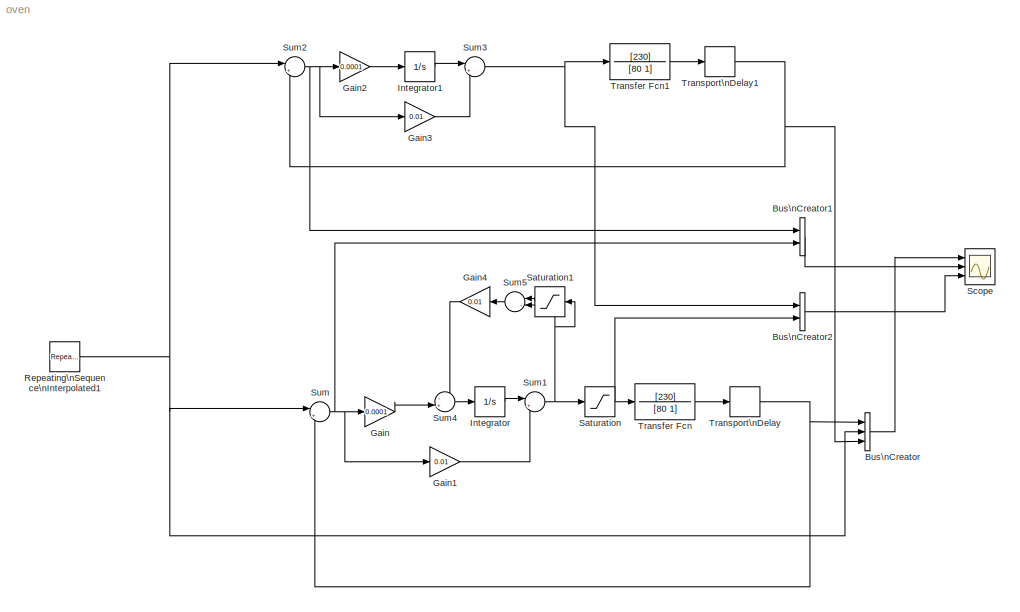
MODEL oven
KIND model
BLOCK [BusCreator] Bus\nCreator
  DisplayOption = bar
  Inputs = 3
  Ports = [3, 1]
  SID = 8
BLOCK [BusCreator] Bus\nCreator1
  DisplayOption = bar
  Inputs = 2
  Ports = [2, 1]
  SID = 40
BLOCK [BusCreator] Bus\nCreator2
  DisplayOption = bar
  Inputs = 2
  Ports = [2, 1]
  SID = 54
BLOCK [Gain] Gain
  Gain = 0.0001
  OutDataType = fixdt(1, 16)
  OutDataTypeMode = Inherit via internal rule
  OutDataTypeStr = Inherit: Inherit via internal rule
  OutScaling = 2^0
  ParamDataTypeStr = Inherit: Inherit via internal rule
  ParameterDataType = fixdt(1, 16)
  ParameterDataTypeMode = Inherit via internal rule
  ParameterScaling = 2^0
  SID = 36
  SaturateOnIntegerOverflow = off
BLOCK [Gain] Gain1
  Gain = 0.01
  OutDataType = fixdt(1, 16)
  OutDataTypeMode = Inherit via internal rule
  OutDataTypeStr = Inherit: Inherit via internal rule
  OutScaling = 2^0
  ParamDataTypeStr = Inherit: Inherit via internal rule
  ParameterDataType = fixdt(1, 16)
  ParameterDataTypeMode = Inherit via internal rule
  ParameterScaling = 2^0
  SID = 37
  SaturateOnIntegerOverflow = off
BLOCK [Gain] Gain2
  Gain = 0.0001
  OutDataType = fixdt(1, 16)
  OutDataTypeMode = Inherit via internal rule
  OutDataTypeStr = Inherit: Inherit via internal rule
  OutScaling = 2^0
  ParamDataTypeStr = Inherit: Inherit via internal rule
  ParameterDataType = fixdt(1, 16)
  ParameterDataTypeMode = Inherit via internal rule
  ParameterScaling = 2^0
  SID = 41
  SaturateOnIntegerOverflow = off
BLOCK [Gain] Gain3
  Gain = 0.01
  OutDataType = fixdt(1, 16)
  OutDataTypeMode = Inherit via internal rule
  OutDataTypeStr = Inherit: Inherit via internal rule
  OutScaling = 2^0
  ParamDataTypeStr = Inherit: Inherit via internal rule
  ParameterDataType = fixdt(1, 16)
  ParameterDataTypeMode = Inherit via internal rule
  ParameterScaling = 2^0
  SID = 42
  SaturateOnIntegerOverflow = off
BLOCK [Gain] Gain4
  Gain = 0.01
  OutDataType = fixdt(1, 16)
  OutDataTypeMode = Inherit via internal rule
  OutDataTypeStr = Inherit: Inherit via internal rule
  OutScaling = 2^0
  ParamDataTypeStr = Inherit: Inherit via internal rule
  ParameterDataType = fixdt(1, 16)
  ParameterDataTypeMode = Inherit via internal rule
  ParameterScaling = 2^0
  SID = 52
  SaturateOnIntegerOverflow = off
BLOCK [Integrator] Integrator
  Ports = [1, 1]
  SID = 35
BLOCK [Integrator] Integrator1
  Ports = [1, 1]
  SID = 43
BLOCK [Reference] Repeating\nSequence\nInterpolated1  REF=simulink/Sources/Repeating\nSequence\nInterpolated
  FunctionWithSeparateData = off
  LockScale = off
  LookUpMeth = Interpolation-Use End Values
  OutDataType = slDataTypeAndScale(('double'),('2^(-10)'))
  OutDataTypeStr = double
  OutMax = []
  OutMin = []
  OutScaling = []
  OutValues = [25 150 180 210 180 25 25].'
  OutputDataTypeScalingMode = double
  Ports = [0, 1]
  RTWMemSecDataConstants = Inherit from model
  RTWMemSecDataInternal = Inherit from model
  RTWMemSecDataParameters = Inherit from model
  RTWMemSecFuncExecute = Inherit from model
  RTWMemSecFuncInitTerm = Inherit from model
  SID = 63
  ShowPortLabels = FromPortIcon
  SourceBlock = simulink/Sources/Repeating\nSequence\nInterpolated
  SourceType = Repeating Sequence Interpolated
  SystemSampleTime = -1
  TimeValues = [0 90 180 210 240 300 1000].'
  tsamp = 0.01
BLOCK [Saturate] Saturation
  LowerLimit = 0
  OutDataType = fixdt(1, 16)
  OutScaling = 2^0
  SID = 39
  UpperLimit = 1
BLOCK [Saturate] Saturation1
  LowerLimit = 0
  OutDataType = fixdt(1, 16)
  OutScaling = 2^0
  SID = 49
  UpperLimit = 1
BLOCK [Scope] Scope
  DataFormat = StructureWithTime
  Floating = off
  LimitDataPoints = off
  NumInputPorts = 3
  Ports = [3]
  SID = 4
  SampleTime = 0
  YMax = 225~5~5
  YMin = 0~-5~-5
  ZoomMode = xonly
BLOCK [Sum] Sum
  IconShape = round
  InputSameDT = off
  Inputs = |+-
  OutDataType = fixdt(1, 16)
  OutDataTypeMode = Inherit via internal rule
  OutDataTypeStr = Inherit: Inherit via internal rule
  OutScaling = 2^0
  Ports = [2, 1]
  SID = 7
  SaturateOnIntegerOverflow = off
BLOCK [Sum] Sum1
  IconShape = round
  InputSameDT = off
  Inputs = |++
  OutDataType = fixdt(1, 16)
  OutDataTypeMode = Inherit via internal rule
  OutDataTypeStr = Inherit: Inherit via internal rule
  OutScaling = 2^0
  Ports = [2, 1]
  SID = 38
  SaturateOnIntegerOverflow = off
BLOCK [Sum] Sum2
  IconShape = round
  InputSameDT = off
  Inputs = |+-
  OutDataType = fixdt(1, 16)
  OutDataTypeMode = Inherit via internal rule
  OutDataTypeStr = Inherit: Inherit via internal rule
  OutScaling = 2^0
  Ports = [2, 1]
  SID = 45
  SaturateOnIntegerOverflow = off
BLOCK [Sum] Sum3
  IconShape = round
  InputSameDT = off
  Inputs = |++
  OutDataType = fixdt(1, 16)
  OutDataTypeMode = Inherit via internal rule
  OutDataTypeStr = Inherit: Inherit via internal rule
  OutScaling = 2^0
  Ports = [2, 1]
  SID = 46
  SaturateOnIntegerOverflow = off
BLOCK [Sum] Sum4
  IconShape = round
  InputSameDT = off
  Inputs = -+|
  OutDataType = fixdt(1, 16)
  OutDataTypeMode = Inherit via internal rule
  OutDataTypeStr = Inherit: Inherit via internal rule
  OutScaling = 2^0
  Ports = [2, 1]
  SID = 50
  SaturateOnIntegerOverflow = off
BLOCK [Sum] Sum5
  IconShape = round
  InputSameDT = off
  Inputs = |-+
  OutDataType = fixdt(1, 16)
  OutDataTypeMode = Inherit via internal rule
  OutDataTypeStr = Inherit: Inherit via internal rule
  OutScaling = 2^0
  Ports = [2, 1]
  SID = 53
  SaturateOnIntegerOverflow = off
BLOCK [TransferFcn] Transfer Fcn
  Denominator = [80 1]
  Numerator = [230]
  SID = 2
BLOCK [TransferFcn] Transfer Fcn1
  Denominator = [80 1]
  Numerator = [230]
  SID = 57
BLOCK [TransportDelay] Transport\nDelay
  DelayTime = 10
  SID = 1
BLOCK [TransportDelay] Transport\nDelay1
  DelayTime = 10
  SID = 58
LINE Bus\nCreator1:1 -> Scope:2
LINE Bus\nCreator2:1 -> Scope:3
LINE Bus\nCreator:1 -> Scope:1
LINE Gain1:1 -> Sum1:2
LINE Gain2:1 -> Integrator1:1
LINE Gain3:1 -> Sum3:2
LINE Gain4:1 -> Sum4:1
LINE Gain:1 -> Sum4:2
LINE Integrator1:1 -> Sum3:1
LINE Integrator:1 -> Sum1:1
NET Repeating\nSequence\nInterpolated1:1 -> Bus\nCreator:2, Sum2:1, Sum:1
LINE Saturation1:1 -> Sum5:1
NET Saturation:1 -> Bus\nCreator2:2, Transfer Fcn:1
NET Sum1:1 -> Saturation1:1, Saturation:1, Sum5:2
NET Sum2:1 -> Bus\nCreator1:1, Gain2:1, Gain3:1
NET Sum3:1 -> Bus\nCreator2:1, Transfer Fcn1:1
LINE Sum4:1 -> Integrator:1
LINE Sum5:1 -> Gain4:1
NET Sum:1 -> Bus\nCreator1:2, Gain1:1, Gain:1
LINE Transfer Fcn1:1 -> Transport\nDelay1:1
LINE Transfer Fcn:1 -> Transport\nDelay:1
NET Transport\nDelay1:1 -> Bus\nCreator:3, Sum2:2
NET Transport\nDelay:1 -> Bus\nCreator:1, Sum:2
note: NET lines group one-source signal fan-out (src -> all destinations, sorted); 1:1 wires keep LINE
